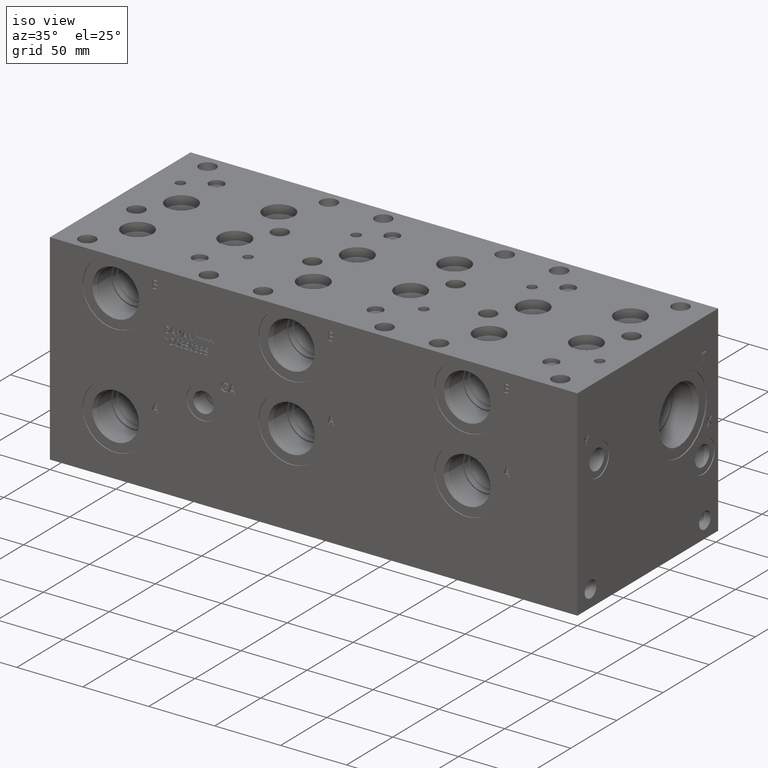
[diagram: clean part render]
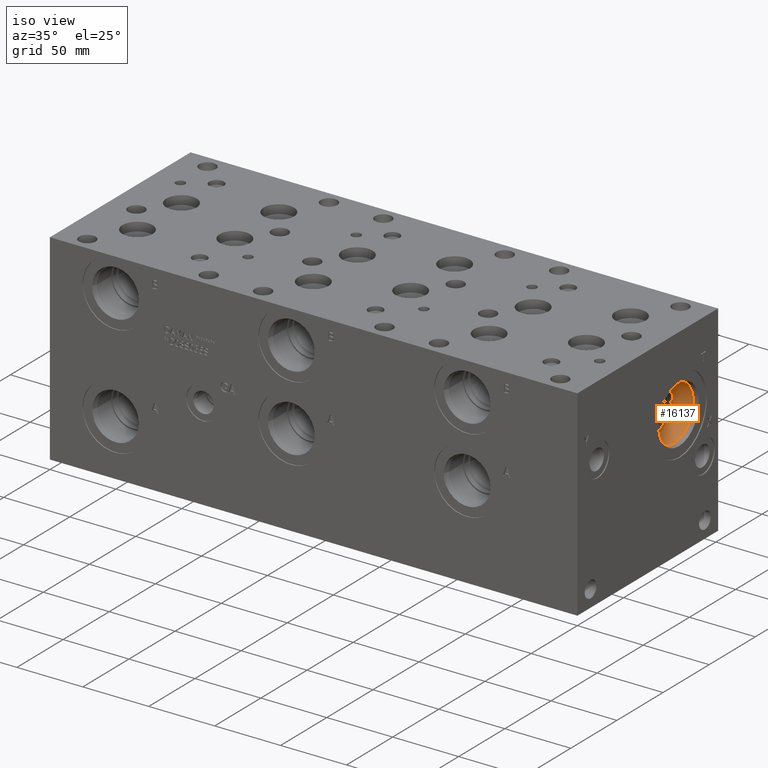
[diagram: same view with one face highlighted and labeled with its STEP entity id]
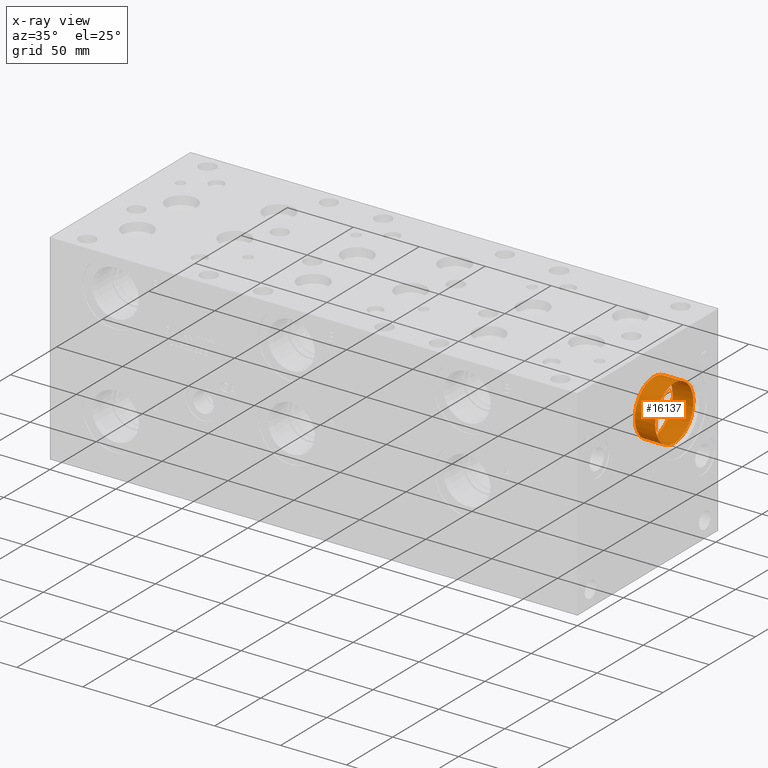
[diagram: x-ray of the same camera — body ghosted, the highlighted face saturated]
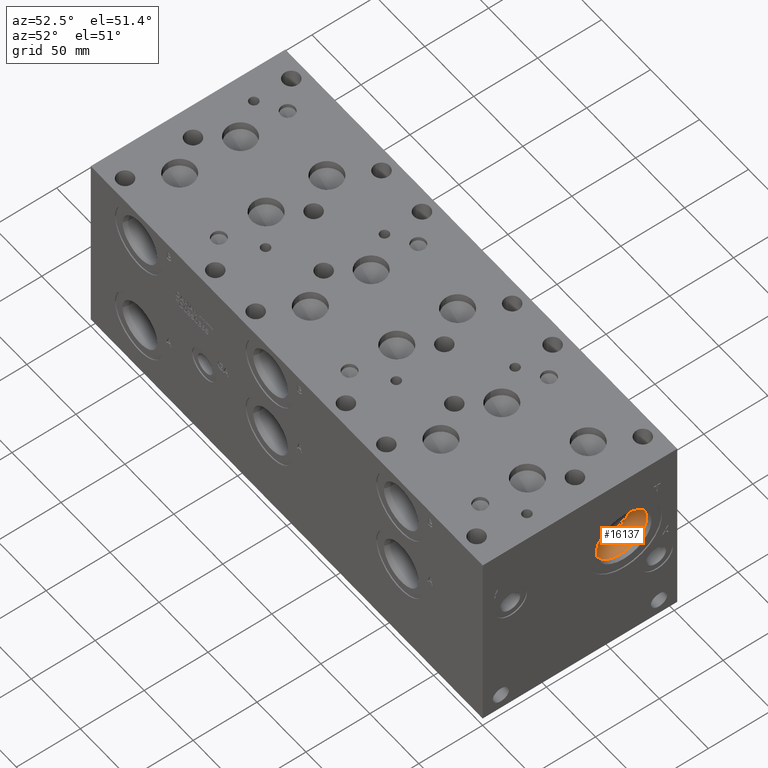
[diagram: same view with one face highlighted and labeled with its STEP entity id]
A machine part, iso view. The second image highlights one B-rep face of the part: STEP entity #16137.
The next image is the same camera in x-ray: the body ghosted, the highlighted face saturated — about 0% of this face is hidden behind the body in this view.
A second angle (auxiliary view) of the same face is appended — the face is thin or edge-on in the first view.
In plain terms, the highlighted cylindrical surface (bore or boss wall) has radius 20.64 mm, axis along (1, 0, 0).
Its self-contained STEP definition (entity closure, byte-faithful):
#15=CYLINDRICAL_SURFACE('',#16855,20.64);
#297=CIRCLE('',#16852,20.64);
#298=CIRCLE('',#16853,20.64);
#300=CIRCLE('',#16856,20.64);
#301=CIRCLE('',#16857,20.64);
#2073=FACE_OUTER_BOUND('',#2993,.T.);
#2993=EDGE_LOOP('',(#13049,#13050,#13051,#13052,#13053,#13054));
#4529=LINE('',#27011,#5915);
#5915=VECTOR('',#19591,20.64);
#7203=VERTEX_POINT('',#27001);
#7204=VERTEX_POINT('',#27002);
#7206=VERTEX_POINT('',#27008);
#7207=VERTEX_POINT('',#27009);
#9298=EDGE_CURVE('',#7203,#7204,#297,.T.);
#9299=EDGE_CURVE('',#7204,#7203,#298,.T.);
#9301=EDGE_CURVE('',#7206,#7207,#300,.T.);
#9302=EDGE_CURVE('',#7206,#7204,#4529,.T.);
#9303=EDGE_CURVE('',#7207,#7206,#301,.T.);
#13049=ORIENTED_EDGE('',*,*,#9301,.F.);
#13050=ORIENTED_EDGE('',*,*,#9302,.T.);
#13051=ORIENTED_EDGE('',*,*,#9298,.F.);
#13052=ORIENTED_EDGE('',*,*,#9299,.F.);
#13053=ORIENTED_EDGE('',*,*,#9302,.F.);
#13054=ORIENTED_EDGE('',*,*,#9303,.F.);
#16137=ADVANCED_FACE('',(#2073),#15,.F.);
#16852=AXIS2_PLACEMENT_3D('',#27003,#19581,#19582);
#16853=AXIS2_PLACEMENT_3D('',#27004,#19583,#19584);
#16855=AXIS2_PLACEMENT_3D('',#27007,#19587,#19588);
#16856=AXIS2_PLACEMENT_3D('',#27010,#19589,#19590);
#16857=AXIS2_PLACEMENT_3D('',#27012,#19592,#19593);
#19581=DIRECTION('center_axis',(1.,0.,0.));
#19582=DIRECTION('ref_axis',(0.,1.,0.));
#19583=DIRECTION('center_axis',(1.,0.,0.));
#19584=DIRECTION('ref_axis',(0.,1.,0.));
#19587=DIRECTION('center_axis',(1.,0.,0.));
#19588=DIRECTION('ref_axis',(0.,1.,0.));
#19589=DIRECTION('center_axis',(-1.,0.,0.));
#19590=DIRECTION('ref_axis',(0.,1.,0.));
#19591=DIRECTION('',(-1.,0.,0.));
#19592=DIRECTION('center_axis',(-1.,0.,0.));
#19593=DIRECTION('ref_axis',(0.,1.,0.));
#27001=CARTESIAN_POINT('',(380.2126,131.765,95.25));
#27002=CARTESIAN_POINT('',(380.2126,90.485,95.25));
#27003=CARTESIAN_POINT('Origin',(380.2126,111.125,95.25));
#27004=CARTESIAN_POINT('Origin',(380.2126,111.125,95.25));
#27007=CARTESIAN_POINT('Origin',(390.1313,111.125,95.25));
#27008=CARTESIAN_POINT('',(395.7472,90.485,95.25));
#27009=CARTESIAN_POINT('',(395.7472,111.125,115.89));
#27010=CARTESIAN_POINT('Origin',(395.7472,111.125,95.25));
#27011=CARTESIAN_POINT('',(390.1313,90.485,95.25));
#27012=CARTESIAN_POINT('Origin',(395.7472,111.125,95.25));